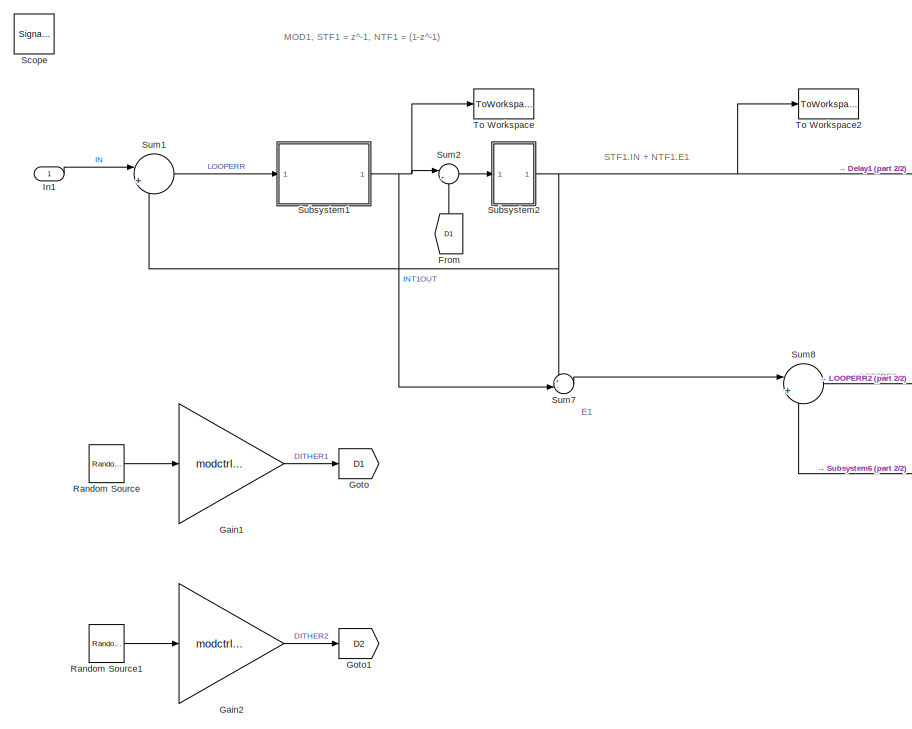
[diagram: root canvas - part 1/2, left side, full height]
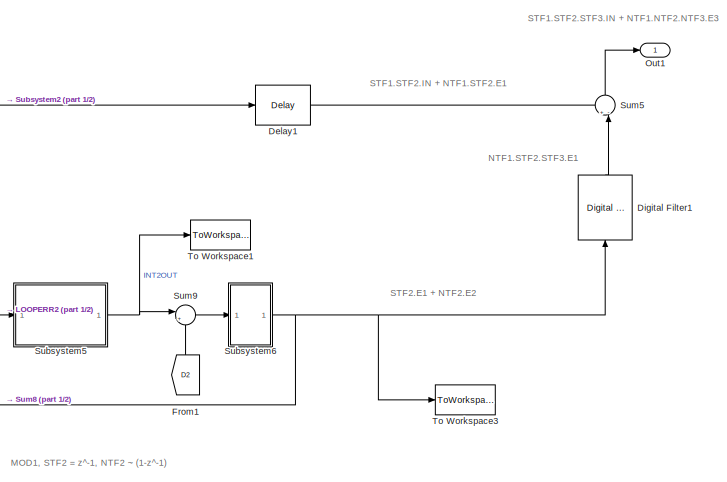
[diagram: root canvas - part 2/2, middle right region]
MODEL slx_b65cfb7a0035
KIND model
BLOCK [Reference] Delay1  REF=dspsigops/Delay
  AttributesFormatString = STF2
  InputProcessing = Columns as channels (frame based)
  Ports = [1, 1]
  SourceBlock = dspsigops/Delay
  SourceType = Delay
  UserDataPersistent = on
  delay = 1
  dif_ic_for_ch = off
  dif_ic_for_dly = off
  dly_unit = Samples
  ic = 0
  ic_detail = off
  reset_popup = None
BLOCK [Reference] Digital Filter1  REF=dsparch4/Digital Filter
  AllPoleFiltStruct = Direct form
  AttributesFormatString = NTF1 = (1-z^-1)
  BiQuadCoeffs = [1 0.3 0.4 1 0.1 0.2]
  CoeffSource = Specify via dialog
  DenCoeffs = [1 0.1]
  FIRFiltStruct = Direct form
  FiltPerSampPopup = One filter per frame
  FilterSource = Specify via dialog
  IC = 0
  ICden = 0
  ICnum = 0
  IIRFiltStruct = Direct form II transposed
  InputProcessing = Columns as channels (frame based)
  LatticeCoeffs = [0.2 0.4]
  LockScale = off
  NumCoeffs = [1 -1]
  Ports = [1, 1]
  ScaleValues = 1
  SourceBlock = dsparch4/Digital Filter
  SourceType = Digital Filter
  TypePopup = FIR (all zeros)
  UserDataPersistent = on
  accumFracLength = 30
  accumMode = Same as product output
  accumWordLength = 32
  additionalParams = off
  allowOverrides = on
  denIgnore = on
  dfiltObjectName = dfilt.dffir([1 2 1])
  firstCoeffFracLength = 15
  firstCoeffMode = Same word length as input
  firstCoeffWordLength = 16
  memoryFracLength = 15
  memoryMode = Same as accumulator
  memoryWordLength = 16
  multiplicandFracLength = 30
  multiplicandMode = Same as output
  multiplicandWordLength = 32
  outputFracLength = 15
  outputMode = Same as accumulator
  outputWordLength = 16
  overflowMode = off
  prodOutputFracLength = 30
  prodOutputMode = Same as input
  prodOutputWordLength = 32
  roundingMode = Floor
  scaleValueFracLength = 14
  secondCoeffFracLength = 15
  secondCoeffMode = Same as numerator
  secondCoeffWordLength = 16
  showAcc = off
  showCoeff = off
  showMem = off
  showMpy = off
  showOut = off
  stageIOMode = Same as input
  stageIOWordLength = 16
  stageInFracLength = 15
  stageOutFracLength = 15
  tapSumFracLength = 30
  tapSumMode = Same as input
  tapSumWordLength = 32
  thirdCoeffFracLength = 15
  thirdCoeffMode = Same as input
  thirdCoeffWordLength = 16
BLOCK [From] From
  GotoTag = D1
BLOCK [From] From1
  GotoTag = D2
BLOCK [Gain] Gain1
  AttributesFormatString = Dither level adjust
  Gain = modctrl.dgain1
  OutDataTypeStr = Inherit: Inherit via internal rule
  ParamDataTypeStr = Inherit: Inherit via internal rule
  SaturateOnIntegerOverflow = off
BLOCK [Gain] Gain2
  AttributesFormatString = Dither level adjust
  Gain = modctrl.dgain2
  OutDataTypeStr = Inherit: Inherit via internal rule
  ParamDataTypeStr = Inherit: Inherit via internal rule
  SaturateOnIntegerOverflow = off
BLOCK [Goto] Goto
  GotoTag = D1
BLOCK [Goto] Goto1
  GotoTag = D2
BLOCK [Inport] In1
  IconDisplay = Port number
BLOCK [Outport] Out1
  IconDisplay = Port number
BLOCK [Reference] Random Source  REF=dspsrcs4/Random
Source
  AttributesFormatString = Dither source
  CltLength = 12
  DataType = Double
  IsInherit = off
  MaxVal = 1
  MeanVal = 0
  MinVal = -1
  NormMethod = Ziggurat
  OutComplex = Real
  Ports = [0, 1]
  RepMode = Not repeatable
  SampFrame = 1
  SampMode = Discrete
  SampTime = 1/Fs
  SourceBlock = dspsrcs4/Random\nSource
  SourceType = Random Source
  SrcType = Uniform
  UserDataPersistent = on
  VarVal = 1
  rawSeed = 1
BLOCK [Reference] Random Source1  REF=dspsrcs4/Random
Source
  AttributesFormatString = Dither source
  CltLength = 12
  DataType = Double
  IsInherit = off
  MaxVal = 1
  MeanVal = 0
  MinVal = -1
  NormMethod = Ziggurat
  OutComplex = Real
  Ports = [0, 1]
  RepMode = Not repeatable
  SampFrame = 1
  SampMode = Discrete
  SampTime = 1/Fs
  SourceBlock = dspsrcs4/Random\nSource
  SourceType = Random Source
  SrcType = Uniform
  UserDataPersistent = on
  VarVal = 1
  rawSeed = 1
BLOCK [SignalViewerScope] Scope
  IOType = viewer
  MaxDataPoints = 7500
  NumInputPorts = 4
  Ports = []
  RefreshTime = 0.035000
  ShowDataMarkers = off
  ShowLegends = off
  YMax = 5~5~5~5
  YMin = -5~-5~-5~-5
  ZoomMode = xonly
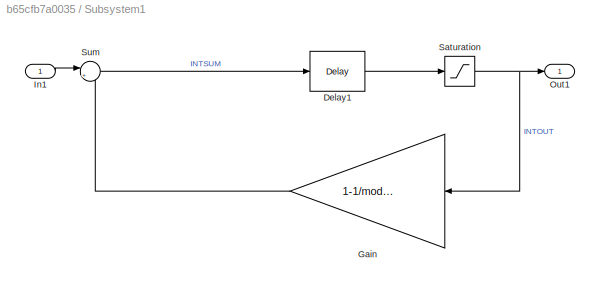
BLOCK [SubSystem] Subsystem1
  AttributesFormatString = Leaky delaying int
  FunctionWithSeparateData = off
  MaskHideContents = off
  MinAlgLoopOccurrences = off
  Opaque = off
  Ports = [1, 1]
  PropExecContextOutsideSubsystem = off
  RTWSystemCode = Auto
  RequestExecContextInheritance = off
BLOCK [Reference] Subsystem1/Delay1  REF=dspsigops/Delay
  InputProcessing = Inherited (this choice will be removed - see release notes)
  Ports = [1, 1]
  SourceBlock = dspsigops/Delay
  SourceType = Delay
  UserDataPersistent = on
  delay = 1
  dif_ic_for_ch = off
  dif_ic_for_dly = off
  dly_unit = Samples
  ic = 0.1
  ic_detail = off
  reset_popup = None
BLOCK [Gain] Subsystem1/Gain
  AttributesFormatString = Integrator leakage
  Gain = 1-1/modctrl.igain1
  OutDataTypeStr = Inherit: Inherit via internal rule
  ParamDataTypeStr = Inherit: Inherit via internal rule
  SaturateOnIntegerOverflow = off
BLOCK [Inport] Subsystem1/In1
  IconDisplay = Port number
BLOCK [Outport] Subsystem1/Out1
  IconDisplay = Port number
BLOCK [Saturate] Subsystem1/Saturation
  InputPortMap = u0
  LowerLimit = -(modctrl.isat1)
  Ports = [1, 1]
  UpperLimit = modctrl.isat1
BLOCK [Sum] Subsystem1/Sum
  AttributesFormatString = Integrator summer
  IconShape = round
  InputSameDT = off
  Inputs = |++
  OutDataTypeStr = Inherit: Inherit via internal rule
  Ports = [2, 1]
  SaturateOnIntegerOverflow = off
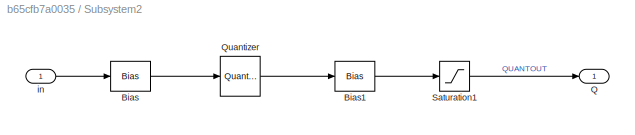
BLOCK [SubSystem] Subsystem2
  AttributesFormatString = 2-bit quantiser
  FunctionWithSeparateData = off
  MaskHideContents = off
  MinAlgLoopOccurrences = off
  Opaque = off
  Ports = [1, 1]
  PropExecContextOutsideSubsystem = off
  RTWSystemCode = Auto
  RequestExecContextInheritance = off
BLOCK [Bias] Subsystem2/Bias
  AttributesFormatString = Need offset to give\nMID-RISE quantiser
  Bias = 1/3
  SaturateOnIntegerOverflow = off
BLOCK [Bias] Subsystem2/Bias1
  Bias = -1/3
  SaturateOnIntegerOverflow = off
BLOCK [Outport] Subsystem2/Q
  IconDisplay = Port number
BLOCK [Quantizer] Subsystem2/Quantizer
  LinearizeAsGain = off
  QuantizationInterval = 2/3
BLOCK [Saturate] Subsystem2/Saturation1
  AttributesFormatString = Limit quantiser\noutput to +/-1
  InputPortMap = u0
  LowerLimit = -1
  Ports = [1, 1]
  UpperLimit = 1
BLOCK [Inport] Subsystem2/in
  IconDisplay = Port number
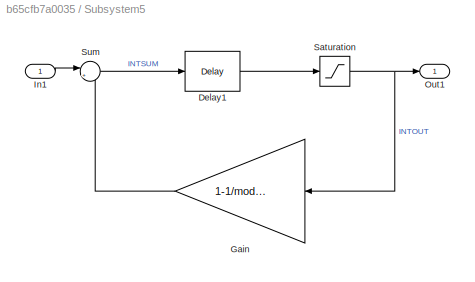
BLOCK [SubSystem] Subsystem5
  AttributesFormatString = Leaky delaying int
  FunctionWithSeparateData = off
  MaskHideContents = off
  MinAlgLoopOccurrences = off
  Opaque = off
  Ports = [1, 1]
  PropExecContextOutsideSubsystem = off
  RTWSystemCode = Auto
  RequestExecContextInheritance = off
BLOCK [Reference] Subsystem5/Delay1  REF=dspsigops/Delay
  InputProcessing = Inherited (this choice will be removed - see release notes)
  Ports = [1, 1]
  SourceBlock = dspsigops/Delay
  SourceType = Delay
  UserDataPersistent = on
  delay = 1
  dif_ic_for_ch = off
  dif_ic_for_dly = off
  dly_unit = Samples
  ic = -0.1
  ic_detail = off
  reset_popup = None
BLOCK [Gain] Subsystem5/Gain
  AttributesFormatString = Integrator leakage
  Gain = 1-1/modctrl.igain2
  OutDataTypeStr = Inherit: Inherit via internal rule
  ParamDataTypeStr = Inherit: Inherit via internal rule
  SaturateOnIntegerOverflow = off
BLOCK [Inport] Subsystem5/In1
  IconDisplay = Port number
BLOCK [Outport] Subsystem5/Out1
  IconDisplay = Port number
BLOCK [Saturate] Subsystem5/Saturation
  InputPortMap = u0
  LowerLimit = -(modctrl.isat2)
  Ports = [1, 1]
  UpperLimit = modctrl.isat2
BLOCK [Sum] Subsystem5/Sum
  AttributesFormatString = Integrator summer
  IconShape = round
  InputSameDT = off
  Inputs = |++
  OutDataTypeStr = Inherit: Inherit via internal rule
  Ports = [2, 1]
  SaturateOnIntegerOverflow = off
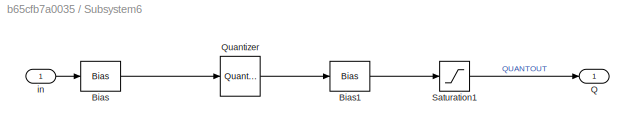
BLOCK [SubSystem] Subsystem6
  AttributesFormatString = 1-bit quantiser
  FunctionWithSeparateData = off
  MaskHideContents = off
  MinAlgLoopOccurrences = off
  Opaque = off
  Ports = [1, 1]
  PropExecContextOutsideSubsystem = off
  RTWSystemCode = Auto
  RequestExecContextInheritance = off
BLOCK [Bias] Subsystem6/Bias
  AttributesFormatString = Need offset to give\nMID-RISE quantiser
  Bias = 1
  SaturateOnIntegerOverflow = off
BLOCK [Bias] Subsystem6/Bias1
  Bias = -1
  SaturateOnIntegerOverflow = off
BLOCK [Outport] Subsystem6/Q
  IconDisplay = Port number
BLOCK [Quantizer] Subsystem6/Quantizer
  LinearizeAsGain = off
  QuantizationInterval = 2
BLOCK [Saturate] Subsystem6/Saturation1
  AttributesFormatString = Limit quantiser\noutput to +/-1
  InputPortMap = u0
  LowerLimit = -1
  Ports = [1, 1]
  UpperLimit = 1
BLOCK [Inport] Subsystem6/in
  IconDisplay = Port number
BLOCK [Sum] Sum1
  AttributesFormatString = Modulator input\nloop servo error (input - fbk)
  IconShape = round
  InputSameDT = off
  Inputs = |+-
  OutDataTypeStr = Inherit: Inherit via internal rule
  Ports = [2, 1]
  SaturateOnIntegerOverflow = off
BLOCK [Sum] Sum2
  IconShape = round
  InputSameDT = off
  Inputs = |++
  OutDataTypeStr = Inherit: Inherit via internal rule
  Ports = [2, 1]
  SaturateOnIntegerOverflow = off
BLOCK [Sum] Sum5
  IconShape = round
  InputSameDT = off
  Inputs = +-|
  OutDataTypeStr = Inherit: Inherit via internal rule
  Ports = [2, 1]
  SaturateOnIntegerOverflow = off
BLOCK [Sum] Sum7
  IconShape = round
  InputSameDT = off
  Inputs = +-|
  OutDataTypeStr = Inherit: Inherit via internal rule
  Ports = [2, 1]
  SaturateOnIntegerOverflow = off
BLOCK [Sum] Sum8
  AttributesFormatString = Modulator input\nloop servo error (input - fbk)
  IconShape = round
  InputSameDT = off
  Inputs = |+-
  OutDataTypeStr = Inherit: Inherit via internal rule
  Ports = [2, 1]
  SaturateOnIntegerOverflow = off
BLOCK [Sum] Sum9
  IconShape = round
  InputSameDT = off
  Inputs = |++
  OutDataTypeStr = Inherit: Inherit via internal rule
  Ports = [2, 1]
  SaturateOnIntegerOverflow = off
BLOCK [ToWorkspace] To Workspace
  MaxDataPoints = inf
  Ports = [1]
  SampleTime = -1
  VariableName = INT1OUT
BLOCK [ToWorkspace] To Workspace1
  MaxDataPoints = inf
  Ports = [1]
  SampleTime = -1
  VariableName = INT2OUT
BLOCK [ToWorkspace] To Workspace2
  MaxDataPoints = inf
  Ports = [1]
  SampleTime = -1
  VariableName = Qout1
BLOCK [ToWorkspace] To Workspace3
  MaxDataPoints = inf
  Ports = [1]
  SampleTime = -1
  VariableName = Qout2
ANNOTATION (root): E1
ANNOTATION (root): MOD1, STF1 = z^-1, NTF1 = (1-z^-1)
ANNOTATION (root): MOD1, STF2 = z^-1, NTF2 ~ (1-z^-1)
ANNOTATION (root): NTF1.STF2.STF3.E1
ANNOTATION (root): STF1.IN + NTF1.E1
ANNOTATION (root): STF1.STF2.IN + NTF1.STF2.E1
ANNOTATION (root): STF1.STF2.STF3.IN + NTF1.NTF2.NTF3.E3
ANNOTATION (root): STF2.E1 + NTF2.E2
LINE Delay1:1 -> Sum5:1
LINE Digital Filter1:1 -> Sum5:2
LINE From1:1 -> Sum9:2
LINE From:1 -> Sum2:2
LINE Gain1:1 -> Goto:1
LINE Gain2:1 -> Goto1:1
LINE In1:1 -> Sum1:1
LINE Random Source1:1 -> Gain2:1
LINE Random Source:1 -> Gain1:1
LINE Subsystem1/Delay1:1 -> Subsystem1/Saturation:1
LINE Subsystem1/Gain:1 -> Subsystem1/Sum:2
LINE Subsystem1/In1:1 -> Subsystem1/Sum:1
NET Subsystem1/Saturation:1 -> Subsystem1/Gain:1, Subsystem1/Out1:1
LINE Subsystem1/Sum:1 -> Subsystem1/Delay1:1
NET Subsystem1:1 -> Sum2:1, Sum7:2, To Workspace:1
LINE Subsystem2/Bias1:1 -> Subsystem2/Saturation1:1
LINE Subsystem2/Bias:1 -> Subsystem2/Quantizer:1
LINE Subsystem2/Quantizer:1 -> Subsystem2/Bias1:1
LINE Subsystem2/Saturation1:1 -> Subsystem2/Q:1
LINE Subsystem2/in:1 -> Subsystem2/Bias:1
NET Subsystem2:1 -> Delay1:1, Sum1:2, Sum7:1, To Workspace2:1
LINE Subsystem5/Delay1:1 -> Subsystem5/Saturation:1
LINE Subsystem5/Gain:1 -> Subsystem5/Sum:2
LINE Subsystem5/In1:1 -> Subsystem5/Sum:1
NET Subsystem5/Saturation:1 -> Subsystem5/Gain:1, Subsystem5/Out1:1
LINE Subsystem5/Sum:1 -> Subsystem5/Delay1:1
NET Subsystem5:1 -> Sum9:1, To Workspace1:1
LINE Subsystem6/Bias1:1 -> Subsystem6/Saturation1:1
LINE Subsystem6/Bias:1 -> Subsystem6/Quantizer:1
LINE Subsystem6/Quantizer:1 -> Subsystem6/Bias1:1
LINE Subsystem6/Saturation1:1 -> Subsystem6/Q:1
LINE Subsystem6/in:1 -> Subsystem6/Bias:1
NET Subsystem6:1 -> Digital Filter1:1, Sum8:2, To Workspace3:1
LINE Sum1:1 -> Subsystem1:1
LINE Sum2:1 -> Subsystem2:1
LINE Sum5:1 -> Out1:1
LINE Sum7:1 -> Sum8:1
LINE Sum8:1 -> Subsystem5:1
LINE Sum9:1 -> Subsystem6:1
note: NET lines group one-source signal fan-out (src -> all destinations, sorted); 1:1 wires keep LINE
